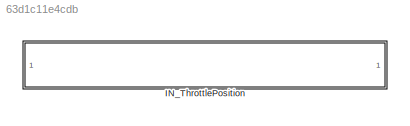
MODEL slx_63d1c11e4cdb
KIND library
CONFIG AbsTol = auto
CONFIG EnableMultiTasking = off
CONFIG FixedStep = auto
CONFIG MaxStep = auto
CONFIG MinStep = auto
CONFIG RelTol = 1e-3
CONFIG SampleTimeConstraint = Unconstrained
CONFIG SolverName = VariableStepAuto
CONFIG StartTime = 0.0
CONFIG StopTime = 10.0
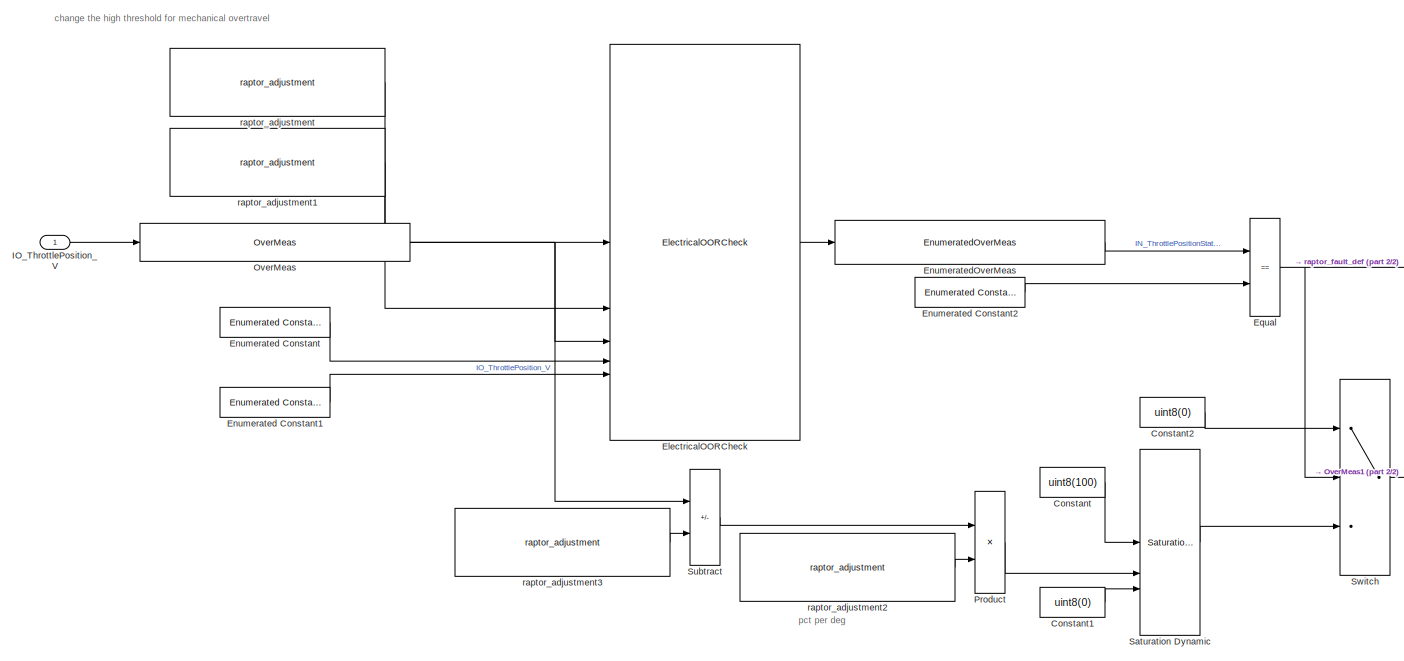
[diagram: IN_ThrottlePosition - part 1/2, most of the canvas]
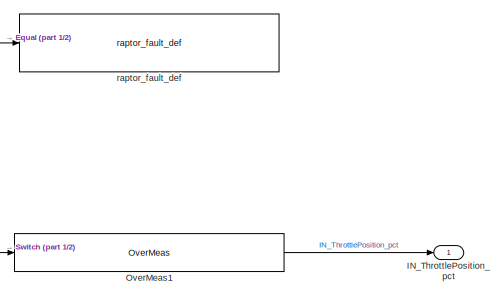
[diagram: IN_ThrottlePosition - part 2/2, middle right region]
BLOCK [SubSystem] IN_ThrottlePosition
BLOCK [Constant] IN_ThrottlePosition/Constant
  Value = uint8(100)
BLOCK [Constant] IN_ThrottlePosition/Constant1
  Value = uint8(0)
BLOCK [Constant] IN_ThrottlePosition/Constant2
  Value = uint8(0)
BLOCK [Reference] IN_ThrottlePosition/ElectricalOORCheck  REF=Utilities/ElectricalOORCheck
  SourceBlock = Utilities/ElectricalOORCheck
BLOCK [Reference] IN_ThrottlePosition/Enumerated Constant  REF=simulink/Sources/Enumerated
Constant
  SourceBlock = simulink/Sources/Enumerated\nConstant
  SourceType = Enumerated Constant
BLOCK [Reference] IN_ThrottlePosition/Enumerated Constant1  REF=simulink/Sources/Enumerated
Constant
  SourceBlock = simulink/Sources/Enumerated\nConstant
  SourceType = Enumerated Constant
BLOCK [Reference] IN_ThrottlePosition/Enumerated Constant2  REF=simulink/Sources/Enumerated
Constant
  SourceBlock = simulink/Sources/Enumerated\nConstant
  SourceType = Enumerated Constant
BLOCK [Reference] IN_ThrottlePosition/EnumeratedOverMeas  REF=Utilities/EnumeratedOverMeas
  SourceBlock = Utilities/EnumeratedOverMeas
BLOCK [RelationalOperator] IN_ThrottlePosition/Equal
  InputSameDT = off
  Operator = ==
  OutDataTypeStr = boolean
  RndMeth = Simplest
BLOCK [Outport] IN_ThrottlePosition/IN_ThrottlePosition_pct
BLOCK [Inport] IN_ThrottlePosition/IO_ThrottlePosition_V
BLOCK [Reference] IN_ThrottlePosition/OverMeas  REF=Utilities/OverMeas
  SourceBlock = Utilities/OverMeas
BLOCK [Reference] IN_ThrottlePosition/OverMeas1  REF=Utilities/OverMeas
  SourceBlock = Utilities/OverMeas
BLOCK [Product] IN_ThrottlePosition/Product
BLOCK [Reference] IN_ThrottlePosition/Saturation Dynamic  REF=simulink/Discontinuities/Saturation
Dynamic
  SourceBlock = simulink/Discontinuities/Saturation\nDynamic
  SourceType = Saturation Dynamic
BLOCK [Sum] IN_ThrottlePosition/Subtract
  IconShape = rectangular
  Inputs = +-
BLOCK [Switch] IN_ThrottlePosition/Switch
  Criteria = u2 ~= 0
  InputSameDT = off
  SaturateOnIntegerOverflow = off
BLOCK [Reference] IN_ThrottlePosition/raptor_adjustment  REF=Raptor_lib/Data Storage/raptor_adjustment
  SourceBlock = Raptor_lib/Data Storage/raptor_adjustment
  SourceProductName = Raptor
  SourceType = Adjustment
BLOCK [Reference] IN_ThrottlePosition/raptor_adjustment1  REF=Raptor_lib/Data Storage/raptor_adjustment
  SourceBlock = Raptor_lib/Data Storage/raptor_adjustment
  SourceProductName = Raptor
  SourceType = Adjustment
BLOCK [Reference] IN_ThrottlePosition/raptor_adjustment2  REF=Raptor_lib/Data Storage/raptor_adjustment
  SourceBlock = Raptor_lib/Data Storage/raptor_adjustment
  SourceProductName = Raptor
  SourceType = Adjustment
BLOCK [Reference] IN_ThrottlePosition/raptor_adjustment3  REF=Raptor_lib/Data Storage/raptor_adjustment
  SourceBlock = Raptor_lib/Data Storage/raptor_adjustment
  SourceProductName = Raptor
  SourceType = Adjustment
BLOCK [Reference] IN_ThrottlePosition/raptor_fault_def  REF=Raptor_lib/Faults/raptor_fault_def
  SourceBlock = Raptor_lib/Faults/raptor_fault_def
  SourceProductName = Raptor
  SourceType = Fault Definition
ANNOTATION IN_ThrottlePosition: change the high threshold for mechanical overtravel
ANNOTATION IN_ThrottlePosition: pct per deg
LINE IN_ThrottlePosition/Constant1:1 -> IN_ThrottlePosition/Saturation Dynamic:3
LINE IN_ThrottlePosition/Constant2:1 -> IN_ThrottlePosition/Switch:1
LINE IN_ThrottlePosition/Constant:1 -> IN_ThrottlePosition/Saturation Dynamic:1
LINE IN_ThrottlePosition/ElectricalOORCheck:1 -> IN_ThrottlePosition/EnumeratedOverMeas:1
LINE IN_ThrottlePosition/Enumerated Constant1:1 -> IN_ThrottlePosition/ElectricalOORCheck:5
LINE IN_ThrottlePosition/Enumerated Constant2:1 -> IN_ThrottlePosition/Equal:2
LINE IN_ThrottlePosition/Enumerated Constant:1 -> IN_ThrottlePosition/ElectricalOORCheck:4
LINE IN_ThrottlePosition/EnumeratedOverMeas:1 -> IN_ThrottlePosition/Equal:1
NET IN_ThrottlePosition/Equal:1 -> IN_ThrottlePosition/Switch:2, IN_ThrottlePosition/raptor_fault_def:1
LINE IN_ThrottlePosition/IO_ThrottlePosition_V:1 -> IN_ThrottlePosition/OverMeas:1
LINE IN_ThrottlePosition/OverMeas1:1 -> IN_ThrottlePosition/IN_ThrottlePosition_pct:1
NET IN_ThrottlePosition/OverMeas:1 -> IN_ThrottlePosition/ElectricalOORCheck:3, IN_ThrottlePosition/Subtract:1
LINE IN_ThrottlePosition/Product:1 -> IN_ThrottlePosition/Saturation Dynamic:2
LINE IN_ThrottlePosition/Saturation Dynamic:1 -> IN_ThrottlePosition/Switch:3
LINE IN_ThrottlePosition/Subtract:1 -> IN_ThrottlePosition/Product:1
LINE IN_ThrottlePosition/Switch:1 -> IN_ThrottlePosition/OverMeas1:1
LINE IN_ThrottlePosition/raptor_adjustment1:1 -> IN_ThrottlePosition/ElectricalOORCheck:2
LINE IN_ThrottlePosition/raptor_adjustment2:1 -> IN_ThrottlePosition/Product:2
LINE IN_ThrottlePosition/raptor_adjustment3:1 -> IN_ThrottlePosition/Subtract:2
LINE IN_ThrottlePosition/raptor_adjustment:1 -> IN_ThrottlePosition/ElectricalOORCheck:1
note: NET lines group one-source signal fan-out (src -> all destinations, sorted); 1:1 wires keep LINE
